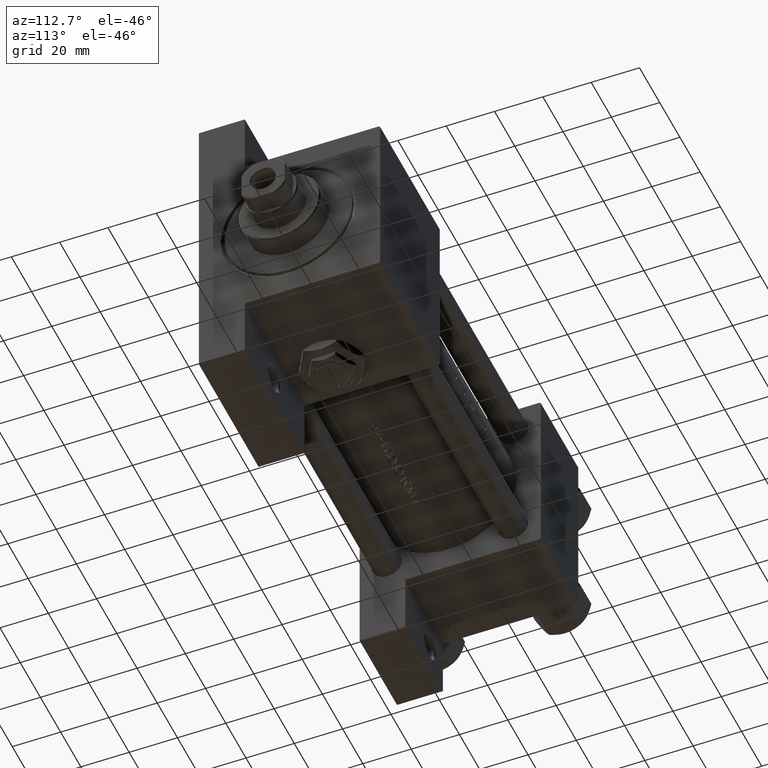
[diagram: clean part render]
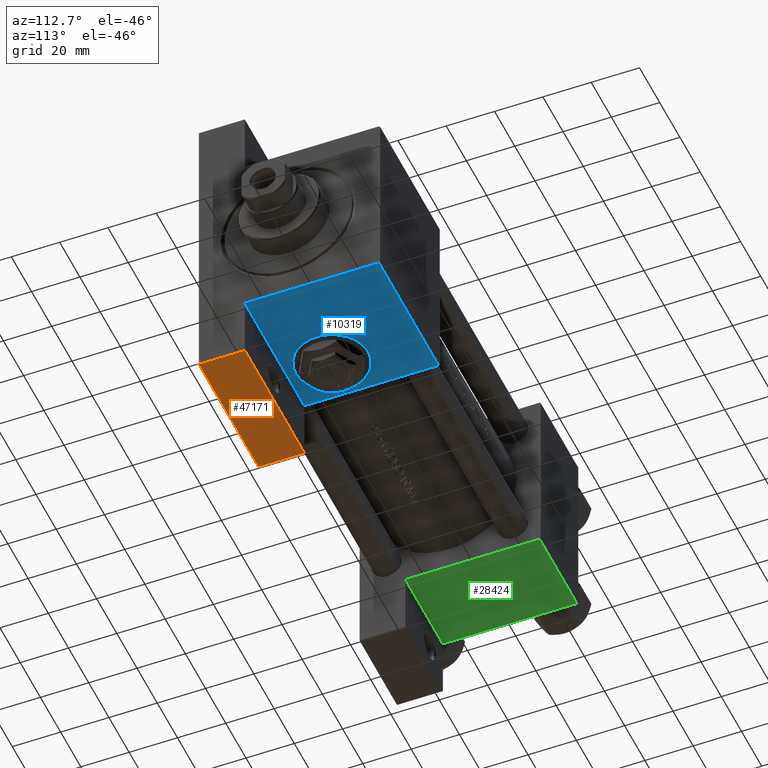
[diagram: same view with three faces highlighted in distinct colors, each labeled with its STEP entity id]
A machine part, auxiliary view with three faces highlighted in distinct colors.
Their STEP definitions:

[orange] entity #47171 — the highlighted planar face has unit normal (-0, 0, -1).
#219 = ORIENTED_EDGE ( 'NONE', *, *, #33139, .F. ) ;
#3239 = VERTEX_POINT ( 'NONE', #13951 ) ;
#3689 = FACE_OUTER_BOUND ( 'NONE', #32892, .T. ) ;
#3938 = PLANE ( 'NONE',  #25890 ) ;
#5481 = CARTESIAN_POINT ( 'NONE',  ( 196.0000000000000284, 63.50000000000000000, -18.50000000000000000 ) ) ;
#7238 = EDGE_CURVE ( 'NONE', #8428, #18595, #28302, .T. ) ;
#8095 = CARTESIAN_POINT ( 'NONE',  ( 137.0000000000000284, 63.49999999999997158, -37.50000000000000000 ) ) ;
#8428 = VERTEX_POINT ( 'NONE', #43428 ) ;
#8878 = CARTESIAN_POINT ( 'NONE',  ( 137.0000000000000284, 63.49999999999997158, -18.50000000000000000 ) ) ;
#13187 = DIRECTION ( 'NONE',  ( 0.000000000000000000, 0.000000000000000000, -1.000000000000000000 ) ) ;
#13951 = CARTESIAN_POINT ( 'NONE',  ( 196.0000000000000284, 63.50000000000000000, -37.50000000000000000 ) ) ;
#14831 = ORIENTED_EDGE ( 'NONE', *, *, #17210, .T. ) ;
#17006 = VECTOR ( 'NONE', #24853, 1000.000000000000000 ) ;
#17210 = EDGE_CURVE ( 'NONE', #18595, #3239, #20167, .T. ) ;
#18595 = VERTEX_POINT ( 'NONE', #36569 ) ;
#20167 = LINE ( 'NONE', #5481, #27623 ) ;
#21443 = VERTEX_POINT ( 'NONE', #23710 ) ;
#23710 = CARTESIAN_POINT ( 'NONE',  ( 137.0000000000000284, 63.49999999999997158, -37.50000000000000000 ) ) ;
#24853 = DIRECTION ( 'NONE',  ( 0.000000000000000000, 0.000000000000000000, -1.000000000000000000 ) ) ;
#24978 = ORIENTED_EDGE ( 'NONE', *, *, #7238, .T. ) ;
#25890 = AXIS2_PLACEMENT_3D ( 'NONE', #41296, #45028, #29856 ) ;
#26830 = VECTOR ( 'NONE', #43725, 1000.000000000000000 ) ;
#27623 = VECTOR ( 'NONE', #13187, 1000.000000000000000 ) ;
#28302 = LINE ( 'NONE', #8878, #26830 ) ;
#28348 = LINE ( 'NONE', #47024, #17006 ) ;
#29856 = DIRECTION ( 'NONE',  ( -1.000000000000000000, -4.704334850106595794E-16, 0.000000000000000000 ) ) ;
#30772 = LINE ( 'NONE', #8095, #36762 ) ;
#31249 = DIRECTION ( 'NONE',  ( 1.000000000000000000, 4.704334850106595794E-16, 0.000000000000000000 ) ) ;
#32892 = EDGE_LOOP ( 'NONE', ( #219, #37064, #24978, #14831 ) ) ;
#33139 = EDGE_CURVE ( 'NONE', #21443, #3239, #30772, .T. ) ;
#36569 = CARTESIAN_POINT ( 'NONE',  ( 196.0000000000000284, 63.50000000000000000, -18.50000000000000000 ) ) ;
#36762 = VECTOR ( 'NONE', #31249, 1000.000000000000000 ) ;
#37064 = ORIENTED_EDGE ( 'NONE', *, *, #38014, .F. ) ;
#38014 = EDGE_CURVE ( 'NONE', #8428, #21443, #28348, .T. ) ;
#41296 = CARTESIAN_POINT ( 'NONE',  ( 137.0000000000000284, 63.49999999999997158, -18.50000000000000000 ) ) ;
#43428 = CARTESIAN_POINT ( 'NONE',  ( 137.0000000000000284, 63.49999999999997158, -18.50000000000000000 ) ) ;
#43725 = DIRECTION ( 'NONE',  ( 1.000000000000000000, 4.704334850106595794E-16, 0.000000000000000000 ) ) ;
#45028 = DIRECTION ( 'NONE',  ( -4.704334850106595794E-16, 1.000000000000000000, 0.000000000000000000 ) ) ;
#47024 = CARTESIAN_POINT ( 'NONE',  ( 137.0000000000000284, 63.49999999999997158, -18.50000000000000000 ) ) ;
#47171 = ADVANCED_FACE ( 'NONE', ( #3689 ), #3938, .T. ) ;

[blue] entity #10319 — the highlighted planar face has unit normal (0, 0, -1).
#355 = CIRCLE ( 'NONE', #21024, 15.00000000000002487 ) ;
#2763 = DIRECTION ( 'NONE',  ( 0.000000000000000000, 1.000000000000000000, 0.000000000000000000 ) ) ;
#2937 = AXIS2_PLACEMENT_3D ( 'NONE', #47295, #20150, #13174 ) ;
#2995 = VERTEX_POINT ( 'NONE', #45876 ) ;
#5302 = LINE ( 'NONE', #9777, #14926 ) ;
#5730 = EDGE_CURVE ( 'NONE', #11199, #17047, #21465, .T. ) ;
#5964 = VERTEX_POINT ( 'NONE', #38790 ) ;
#7926 = ORIENTED_EDGE ( 'NONE', *, *, #39781, .F. ) ;
#9777 = CARTESIAN_POINT ( 'NONE',  ( 196.0000000000000000, 37.50000000000000000, 37.49999999999999289 ) ) ;
#10319 = ADVANCED_FACE ( 'NONE', ( #35835, #32109 ), #16416, .T. ) ;
#11199 = VERTEX_POINT ( 'NONE', #28391 ) ;
#11668 = CARTESIAN_POINT ( 'NONE',  ( 196.0000000000000000, 37.50000000000000000, 37.00000000000002132 ) ) ;
#12550 = DIRECTION ( 'NONE',  ( 0.000000000000000000, 0.000000000000000000, -1.000000000000000000 ) ) ;
#12570 = VERTEX_POINT ( 'NONE', #38513 ) ;
#13143 = CARTESIAN_POINT ( 'NONE',  ( 154.0000000000000284, 37.50000000000000000, 15.00000000000002487 ) ) ;
#13174 = DIRECTION ( 'NONE',  ( 0.000000000000000000, -0.000000000000000000, 1.000000000000000000 ) ) ;
#13978 = DIRECTION ( 'NONE',  ( 0.000000000000000000, 0.000000000000000000, 1.000000000000000000 ) ) ;
#14036 = VECTOR ( 'NONE', #24469, 1000.000000000000000 ) ;
#14926 = VECTOR ( 'NONE', #33675, 1000.000000000000000 ) ;
#16031 = CARTESIAN_POINT ( 'NONE',  ( 137.0000000000000000, 37.50000000000000000, 37.49999999999999289 ) ) ;
#16416 = PLANE ( 'NONE',  #2937 ) ;
#16972 = CARTESIAN_POINT ( 'NONE',  ( 137.0000000000000000, 37.50000000000000000, -18.50000000000000000 ) ) ;
#17047 = VERTEX_POINT ( 'NONE', #18711 ) ;
#17401 = CARTESIAN_POINT ( 'NONE',  ( 154.0000000000000284, 37.50000000000000000, 0.000000000000000000 ) ) ;
#18234 = ORIENTED_EDGE ( 'NONE', *, *, #40700, .F. ) ;
#18632 = DIRECTION ( 'NONE',  ( 1.000000000000000000, 0.000000000000000000, 0.000000000000000000 ) ) ;
#18711 = CARTESIAN_POINT ( 'NONE',  ( 137.0000000000000000, 37.50000000000000000, -18.50000000000000355 ) ) ;
#20150 = DIRECTION ( 'NONE',  ( -0.000000000000000000, 1.000000000000000000, 0.000000000000000000 ) ) ;
#20288 = AXIS2_PLACEMENT_3D ( 'NONE', #17401, #32860, #38902 ) ;
#20696 = CARTESIAN_POINT ( 'NONE',  ( 154.0000000000000284, 37.50000000000000000, 0.000000000000000000 ) ) ;
#21024 = AXIS2_PLACEMENT_3D ( 'NONE', #20696, #2763, #13978 ) ;
#21465 = LINE ( 'NONE', #16972, #14036 ) ;
#23277 = LINE ( 'NONE', #16031, #30394 ) ;
#24469 = DIRECTION ( 'NONE',  ( -1.000000000000000000, 3.528251137579946599E-16, -0.000000000000000000 ) ) ;
#25539 = ORIENTED_EDGE ( 'NONE', *, *, #35748, .T. ) ;
#26525 = VECTOR ( 'NONE', #18632, 1000.000000000000000 ) ;
#28391 = CARTESIAN_POINT ( 'NONE',  ( 196.0000000000000000, 37.49999999999997868, -18.50000000000000000 ) ) ;
#30394 = VECTOR ( 'NONE', #12550, 1000.000000000000000 ) ;
#30512 = EDGE_LOOP ( 'NONE', ( #30581, #25539, #48499, #31962 ) ) ;
#30581 = ORIENTED_EDGE ( 'NONE', *, *, #33097, .F. ) ;
#31602 = EDGE_LOOP ( 'NONE', ( #7926, #18234 ) ) ;
#31962 = ORIENTED_EDGE ( 'NONE', *, *, #5730, .T. ) ;
#32109 = FACE_OUTER_BOUND ( 'NONE', #30512, .T. ) ;
#32860 = DIRECTION ( 'NONE',  ( 0.000000000000000000, 1.000000000000000000, 0.000000000000000000 ) ) ;
#33097 = EDGE_CURVE ( 'NONE', #2995, #17047, #23277, .T. ) ;
#33675 = DIRECTION ( 'NONE',  ( 0.000000000000000000, 0.000000000000000000, -1.000000000000000000 ) ) ;
#35748 = EDGE_CURVE ( 'NONE', #2995, #12570, #38068, .T. ) ;
#35835 = FACE_BOUND ( 'NONE', #31602, .T. ) ;
#38068 = LINE ( 'NONE', #11668, #26525 ) ;
#38513 = CARTESIAN_POINT ( 'NONE',  ( 196.0000000000000000, 37.50000000000000000, 37.00000000000002132 ) ) ;
#38790 = CARTESIAN_POINT ( 'NONE',  ( 154.0000000000000284, 37.50000000000000000, -15.00000000000002487 ) ) ;
#38902 = DIRECTION ( 'NONE',  ( 0.000000000000000000, 0.000000000000000000, 1.000000000000000000 ) ) ;
#39377 = CIRCLE ( 'NONE', #20288, 15.00000000000002487 ) ;
#39781 = EDGE_CURVE ( 'NONE', #49175, #5964, #355, .T. ) ;
#40700 = EDGE_CURVE ( 'NONE', #5964, #49175, #39377, .T. ) ;
#43916 = EDGE_CURVE ( 'NONE', #12570, #11199, #5302, .T. ) ;
#45876 = CARTESIAN_POINT ( 'NONE',  ( 137.0000000000000000, 37.50000000000000000, 37.00000000000002132 ) ) ;
#47295 = CARTESIAN_POINT ( 'NONE',  ( 196.0000000000000000, 37.50000000000000000, 37.49999999999999289 ) ) ;
#48499 = ORIENTED_EDGE ( 'NONE', *, *, #43916, .T. ) ;
#49175 = VERTEX_POINT ( 'NONE', #13143 ) ;

[green] entity #28424 — the highlighted planar face has unit normal (0, 0, -1).
#590 = VECTOR ( 'NONE', #38599, 1000.000000000000000 ) ;
#599 = DIRECTION ( 'NONE',  ( 1.000000000000000000, 0.000000000000000000, 0.000000000000000000 ) ) ;
#1328 = LINE ( 'NONE', #23768, #30968 ) ;
#5974 = VERTEX_POINT ( 'NONE', #16365 ) ;
#7383 = ORIENTED_EDGE ( 'NONE', *, *, #11157, .F. ) ;
#8354 = ORIENTED_EDGE ( 'NONE', *, *, #29202, .T. ) ;
#11157 = EDGE_CURVE ( 'NONE', #18476, #5974, #11975, .T. ) ;
#11826 = CARTESIAN_POINT ( 'NONE',  ( 37.00000000000000000, 37.49999999999999289, 37.00000000000000000 ) ) ;
#11975 = LINE ( 'NONE', #39088, #590 ) ;
#11983 = DIRECTION ( 'NONE',  ( -0.000000000000000000, 1.000000000000000000, 0.000000000000000000 ) ) ;
#12597 = ORIENTED_EDGE ( 'NONE', *, *, #21056, .F. ) ;
#16365 = CARTESIAN_POINT ( 'NONE',  ( 0.000000000000000000, 37.49999999999999289, -18.49999999999999645 ) ) ;
#18476 = VERTEX_POINT ( 'NONE', #27164 ) ;
#20169 = FACE_OUTER_BOUND ( 'NONE', #42952, .T. ) ;
#21056 = EDGE_CURVE ( 'NONE', #5974, #29376, #1328, .T. ) ;
#22945 = EDGE_CURVE ( 'NONE', #48786, #29376, #48463, .T. ) ;
#23768 = CARTESIAN_POINT ( 'NONE',  ( 8.470280871287256020E-15, 37.50000000000002842, -18.49999999999999645 ) ) ;
#27164 = CARTESIAN_POINT ( 'NONE',  ( 0.000000000000000000, 37.49999999999999289, 37.00000000000000000 ) ) ;
#28424 = ADVANCED_FACE ( 'NONE', ( #20169 ), #46344, .T. ) ;
#28818 = VECTOR ( 'NONE', #599, 1000.000000000000000 ) ;
#29202 = EDGE_CURVE ( 'NONE', #18476, #48786, #49188, .T. ) ;
#29376 = VERTEX_POINT ( 'NONE', #43903 ) ;
#30052 = DIRECTION ( 'NONE',  ( 0.000000000000000000, 0.000000000000000000, -1.000000000000000000 ) ) ;
#30968 = VECTOR ( 'NONE', #39426, 1000.000000000000000 ) ;
#31937 = AXIS2_PLACEMENT_3D ( 'NONE', #42850, #11983, #42358 ) ;
#38599 = DIRECTION ( 'NONE',  ( 0.000000000000000000, 0.000000000000000000, -1.000000000000000000 ) ) ;
#39088 = CARTESIAN_POINT ( 'NONE',  ( 0.000000000000000000, 37.49999999999999289, 37.50000000000000000 ) ) ;
#39426 = DIRECTION ( 'NONE',  ( 1.000000000000000000, -3.750753461571474945E-16, 0.000000000000000000 ) ) ;
#42358 = DIRECTION ( 'NONE',  ( 0.000000000000000000, -0.000000000000000000, 1.000000000000000000 ) ) ;
#42366 = CARTESIAN_POINT ( 'NONE',  ( 37.00000000000000000, 37.49999999999999289, 37.00000000000000000 ) ) ;
#42850 = CARTESIAN_POINT ( 'NONE',  ( 37.00000000000000000, 37.49999999999999289, 37.50000000000000000 ) ) ;
#42952 = EDGE_LOOP ( 'NONE', ( #12597, #7383, #8354, #48831 ) ) ;
#43903 = CARTESIAN_POINT ( 'NONE',  ( 37.00000000000000711, 37.50000000000000711, -18.50000000000000355 ) ) ;
#46344 = PLANE ( 'NONE',  #31937 ) ;
#47693 = VECTOR ( 'NONE', #30052, 1000.000000000000000 ) ;
#48463 = LINE ( 'NONE', #48959, #47693 ) ;
#48786 = VERTEX_POINT ( 'NONE', #42366 ) ;
#48831 = ORIENTED_EDGE ( 'NONE', *, *, #22945, .T. ) ;
#48959 = CARTESIAN_POINT ( 'NONE',  ( 37.00000000000000000, 37.49999999999999289, 37.50000000000000000 ) ) ;
#49188 = LINE ( 'NONE', #11826, #28818 ) ;